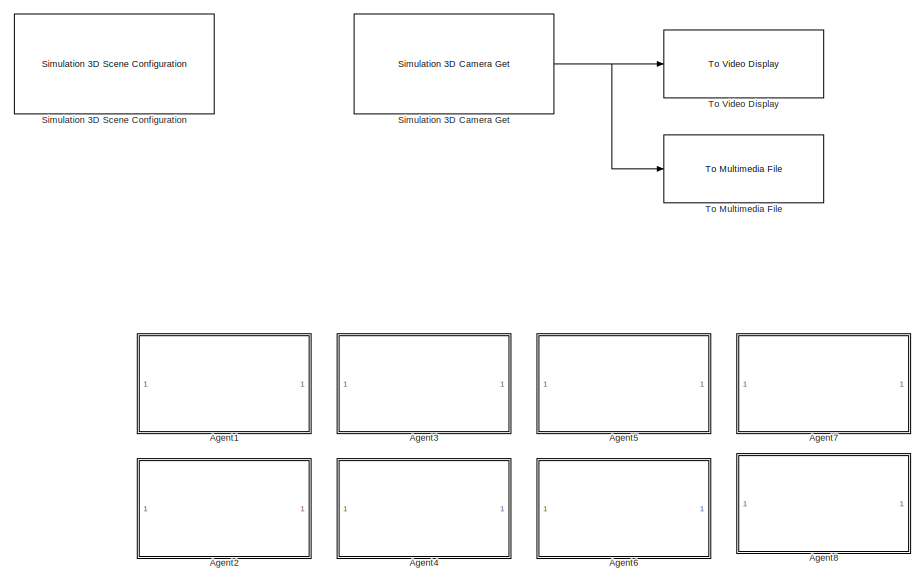
[diagram: root canvas - part 1/4, top center region]
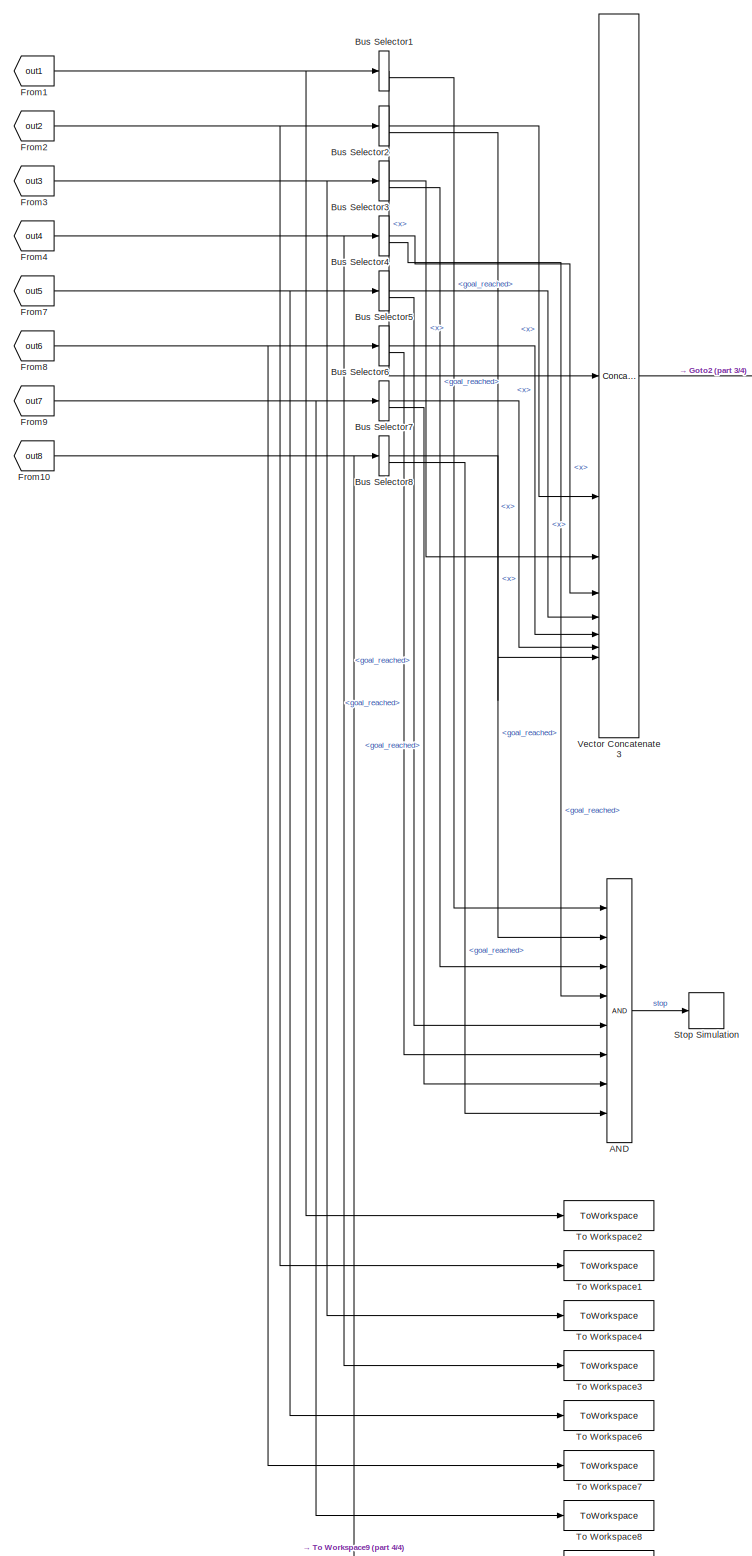
[diagram: root canvas - part 2/4, middle left region]
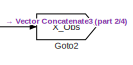
[diagram: root canvas - part 3/4, central region]
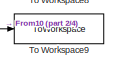
[diagram: root canvas - part 4/4, bottom center region]
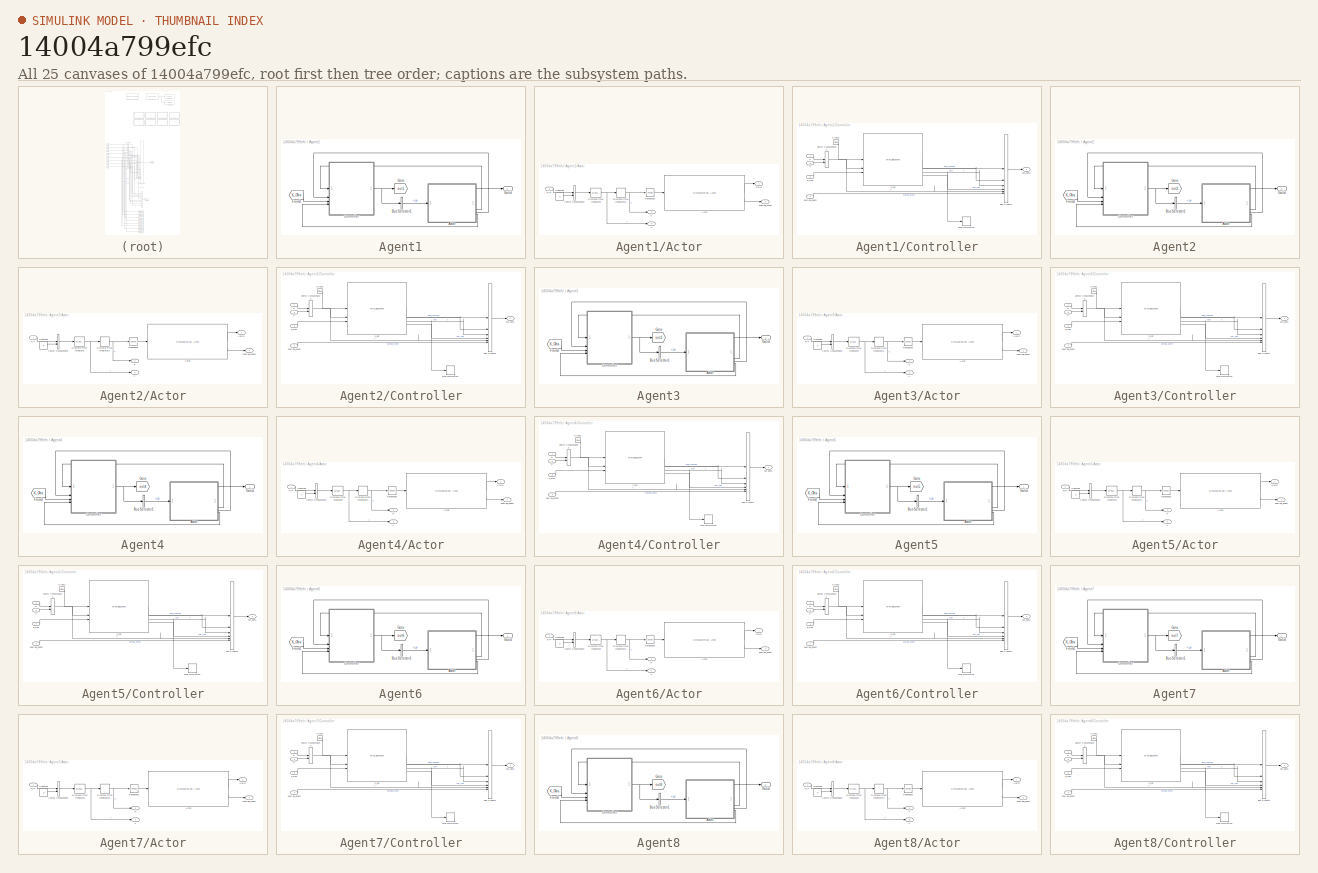
[diagram: thumbnail index - all 25 canvases of the model, root first then tree order]
MODEL slx_14004a799efc
KIND model
CONFIG AbsTol = auto
CONFIG EnableMultiTasking = off
CONFIG FixedStep = config.timestep
CONFIG MaxStep = auto
CONFIG MinStep = auto
CONFIG RelTol = 1e-3
CONFIG SampleTimeConstraint = Unconstrained
CONFIG SolverName = FixedStepAuto
CONFIG StartTime = 0.0
CONFIG StopTime = config.t_max
BLOCK [Logic] AND
  AllPortsSameDT = off
  IconShape = distinctive
  Inputs = 8
  OutDataTypeStr = boolean
BLOCK [SubSystem] Agent1
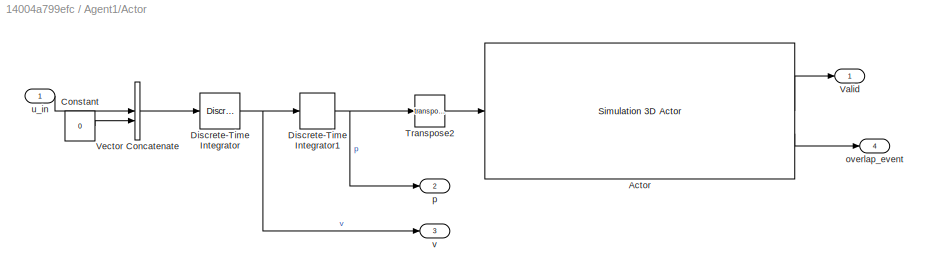
BLOCK [SubSystem] Agent1/Actor
BLOCK [Reference] Agent1/Actor/Actor  REF=sim3dlib/Simulation 3D Actor
  LibrarySourceBlock = sl3dlib/Simulation 3D/Actors/Simulation 3D Actor
  Priority = 1
  SourceBlock = sim3dlib/Simulation 3D Actor
  SourceType = Simulation 3D Actor
BLOCK [Constant] Agent1/Actor/Constant
  Value = 0
BLOCK [DiscreteIntegrator] Agent1/Actor/Discrete-Time Integrator
  ICPrevOutput = DiscIntNeverNeededParam
  ICPrevScaledInput = DiscIntNeverNeededParam
  InitialCondition = agentsInfo{id}.v
  InitialConditionSetting = Auto
  LimitOutput = on
  LowerSaturationLimit = -config.v_max/sqrt(2)
  SampleTime = -1
  UpperSaturationLimit = config.v_max/sqrt(2)
BLOCK [DiscreteIntegrator] Agent1/Actor/Discrete-Time Integrator1
  ICPrevOutput = DiscIntNeverNeededParam
  ICPrevScaledInput = DiscIntNeverNeededParam
  InitialCondition = agentsInfo{id}.p
  InitialConditionSetting = Auto
  SampleTime = -1
BLOCK [Math] Agent1/Actor/Transpose2
  Operator = transpose
BLOCK [Outport] Agent1/Actor/Valid
BLOCK [Concatenate] Agent1/Actor/Vector Concatenate
BLOCK [Outport] Agent1/Actor/overlap_event
  Port = 4
BLOCK [Outport] Agent1/Actor/p
  Port = 2
BLOCK [Inport] Agent1/Actor/u_in
BLOCK [Outport] Agent1/Actor/v
  Port = 3
BLOCK [BusSelector] Agent1/Bus Selector1
  OutputSignals = u
BLOCK [SubSystem] Agent1/Controller
BLOCK [BusCreator] Agent1/Controller/Bus Creator
  DisplayOption = bar
  InheritFromInputs = on
  Inputs = 6
BLOCK [Clock] Agent1/Controller/Clock1
BLOCK [Stop] Agent1/Controller/Stop Simulation
BLOCK [Concatenate] Agent1/Controller/Vector Concatenate2
BLOCK [Inport] Agent1/Controller/X_Obs
  Port = 3
BLOCK [MATLABSystem] Agent1/Controller/h_cbf
  MaskDisplay = disp('h_cbf_system');\nport_label('input',1,'t');\nport_label('input',2,'x');\nport_label('input',3,'X_obs');\nport_label('output',1,'u');\nport_label('output',2,'goal_reached');\nport_label('output',3,'cost');\nport_label('output',4,'exit_flag');  <repeated x8 — deduplicated; at blocks: h_cbf>
  MaskType = h_cbf_system
  SimulateUsing = Interpreted execution
  System = h_cbf_system
  agents_info = agentsInfo
  config = config
  id = id
BLOCK [Outport] Agent1/Controller/out_data
BLOCK [Inport] Agent1/Controller/overlap_event
  Port = 4
BLOCK [Inport] Agent1/Controller/p
BLOCK [Inport] Agent1/Controller/v
  Port = 2
BLOCK [From] Agent1/From3
  GotoTag = X_Obs
  TagVisibility = global
BLOCK [Goto] Agent1/Goto
  GotoTag = out1
  TagVisibility = global
BLOCK [Outport] Agent1/Valid
BLOCK [SubSystem] Agent2
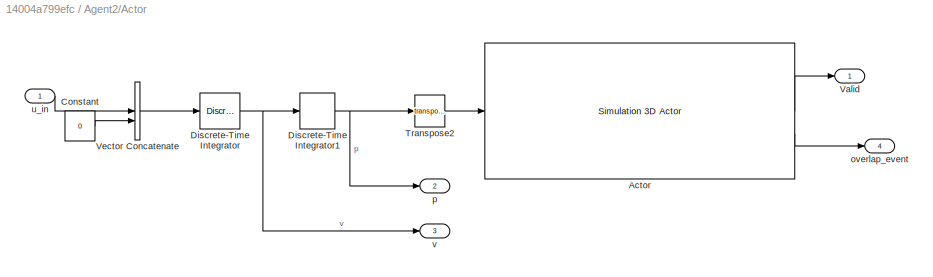
BLOCK [SubSystem] Agent2/Actor
BLOCK [Reference] Agent2/Actor/Actor  REF=sim3dlib/Simulation 3D Actor
  LibrarySourceBlock = sl3dlib/Simulation 3D/Actors/Simulation 3D Actor
  Priority = 1
  SourceBlock = sim3dlib/Simulation 3D Actor
  SourceType = Simulation 3D Actor
BLOCK [Constant] Agent2/Actor/Constant
  Value = 0
BLOCK [DiscreteIntegrator] Agent2/Actor/Discrete-Time Integrator
  ICPrevOutput = DiscIntNeverNeededParam
  ICPrevScaledInput = DiscIntNeverNeededParam
  InitialCondition = agentsInfo{id}.v
  InitialConditionSetting = Auto
  LimitOutput = on
  LowerSaturationLimit = -config.v_max/sqrt(2)
  SampleTime = -1
  UpperSaturationLimit = config.v_max/sqrt(2)
BLOCK [DiscreteIntegrator] Agent2/Actor/Discrete-Time Integrator1
  ICPrevOutput = DiscIntNeverNeededParam
  ICPrevScaledInput = DiscIntNeverNeededParam
  InitialCondition = agentsInfo{id}.p
  InitialConditionSetting = Auto
  SampleTime = -1
BLOCK [Math] Agent2/Actor/Transpose2
  Operator = transpose
BLOCK [Outport] Agent2/Actor/Valid
BLOCK [Concatenate] Agent2/Actor/Vector Concatenate
BLOCK [Outport] Agent2/Actor/overlap_event
  Port = 4
BLOCK [Outport] Agent2/Actor/p
  Port = 2
BLOCK [Inport] Agent2/Actor/u_in
BLOCK [Outport] Agent2/Actor/v
  Port = 3
BLOCK [BusSelector] Agent2/Bus Selector1
  OutputSignals = u
BLOCK [SubSystem] Agent2/Controller
BLOCK [BusCreator] Agent2/Controller/Bus Creator
  DisplayOption = bar
  InheritFromInputs = on
  Inputs = 6
BLOCK [Clock] Agent2/Controller/Clock1
BLOCK [Stop] Agent2/Controller/Stop Simulation
BLOCK [Concatenate] Agent2/Controller/Vector Concatenate2
BLOCK [Inport] Agent2/Controller/X_Obs
  Port = 3
BLOCK [MATLABSystem] Agent2/Controller/h_cbf
  MaskType = h_cbf_system
  SimulateUsing = Interpreted execution
  System = h_cbf_system
  agents_info = agentsInfo
  config = config
  id = id
BLOCK [Outport] Agent2/Controller/out_data
BLOCK [Inport] Agent2/Controller/overlap_event
  Port = 4
BLOCK [Inport] Agent2/Controller/p
BLOCK [Inport] Agent2/Controller/v
  Port = 2
BLOCK [From] Agent2/From3
  GotoTag = X_Obs
  TagVisibility = global
BLOCK [Goto] Agent2/Goto
  GotoTag = out2
  TagVisibility = global
BLOCK [Outport] Agent2/Valid
BLOCK [SubSystem] Agent3
BLOCK [SubSystem] Agent3/Actor
BLOCK [Reference] Agent3/Actor/Actor  REF=sim3dlib/Simulation 3D Actor
  LibrarySourceBlock = sl3dlib/Simulation 3D/Actors/Simulation 3D Actor
  Priority = 1
  SourceBlock = sim3dlib/Simulation 3D Actor
  SourceType = Simulation 3D Actor
BLOCK [Constant] Agent3/Actor/Constant
  Value = 0
BLOCK [DiscreteIntegrator] Agent3/Actor/Discrete-Time Integrator
  ICPrevOutput = DiscIntNeverNeededParam
  ICPrevScaledInput = DiscIntNeverNeededParam
  InitialCondition = agentsInfo{id}.v
  InitialConditionSetting = Auto
  LimitOutput = on
  LowerSaturationLimit = -config.v_max/sqrt(2)
  SampleTime = -1
  UpperSaturationLimit = config.v_max/sqrt(2)
BLOCK [DiscreteIntegrator] Agent3/Actor/Discrete-Time Integrator1
  ICPrevOutput = DiscIntNeverNeededParam
  ICPrevScaledInput = DiscIntNeverNeededParam
  InitialCondition = agentsInfo{id}.p
  InitialConditionSetting = Auto
  SampleTime = -1
BLOCK [Math] Agent3/Actor/Transpose2
  Operator = transpose
BLOCK [Outport] Agent3/Actor/Valid
BLOCK [Concatenate] Agent3/Actor/Vector Concatenate
BLOCK [Outport] Agent3/Actor/overlap_event
  Port = 4
BLOCK [Outport] Agent3/Actor/p
  Port = 2
BLOCK [Inport] Agent3/Actor/u_in
BLOCK [Outport] Agent3/Actor/v
  Port = 3
BLOCK [BusSelector] Agent3/Bus Selector1
  OutputSignals = u
BLOCK [SubSystem] Agent3/Controller
BLOCK [BusCreator] Agent3/Controller/Bus Creator
  DisplayOption = bar
  InheritFromInputs = on
  Inputs = 6
BLOCK [Clock] Agent3/Controller/Clock1
BLOCK [Stop] Agent3/Controller/Stop Simulation
BLOCK [Concatenate] Agent3/Controller/Vector Concatenate2
BLOCK [Inport] Agent3/Controller/X_Obs
  Port = 3
BLOCK [MATLABSystem] Agent3/Controller/h_cbf
  MaskType = h_cbf_system
  SimulateUsing = Interpreted execution
  System = h_cbf_system
  agents_info = agentsInfo
  config = config
  id = id
BLOCK [Outport] Agent3/Controller/out_data
BLOCK [Inport] Agent3/Controller/overlap_event
  Port = 4
BLOCK [Inport] Agent3/Controller/p
BLOCK [Inport] Agent3/Controller/v
  Port = 2
BLOCK [From] Agent3/From3
  GotoTag = X_Obs
  TagVisibility = global
BLOCK [Goto] Agent3/Goto
  GotoTag = out3
  TagVisibility = global
BLOCK [Outport] Agent3/Valid
BLOCK [SubSystem] Agent4
BLOCK [SubSystem] Agent4/Actor
BLOCK [Reference] Agent4/Actor/Actor  REF=sim3dlib/Simulation 3D Actor
  LibrarySourceBlock = sl3dlib/Simulation 3D/Actors/Simulation 3D Actor
  Priority = 1
  SourceBlock = sim3dlib/Simulation 3D Actor
  SourceType = Simulation 3D Actor
BLOCK [Constant] Agent4/Actor/Constant
  Value = 0
BLOCK [DiscreteIntegrator] Agent4/Actor/Discrete-Time Integrator
  ICPrevOutput = DiscIntNeverNeededParam
  ICPrevScaledInput = DiscIntNeverNeededParam
  InitialCondition = agentsInfo{id}.v
  InitialConditionSetting = Auto
  LimitOutput = on
  LowerSaturationLimit = -config.v_max/sqrt(2)
  SampleTime = -1
  UpperSaturationLimit = config.v_max/sqrt(2)
BLOCK [DiscreteIntegrator] Agent4/Actor/Discrete-Time Integrator1
  ICPrevOutput = DiscIntNeverNeededParam
  ICPrevScaledInput = DiscIntNeverNeededParam
  InitialCondition = agentsInfo{id}.p
  InitialConditionSetting = Auto
  SampleTime = -1
BLOCK [Math] Agent4/Actor/Transpose2
  Operator = transpose
BLOCK [Outport] Agent4/Actor/Valid
BLOCK [Concatenate] Agent4/Actor/Vector Concatenate
BLOCK [Outport] Agent4/Actor/overlap_event
  Port = 4
BLOCK [Outport] Agent4/Actor/p
  Port = 2
BLOCK [Inport] Agent4/Actor/u_in
BLOCK [Outport] Agent4/Actor/v
  Port = 3
BLOCK [BusSelector] Agent4/Bus Selector1
  OutputSignals = u
BLOCK [SubSystem] Agent4/Controller
BLOCK [BusCreator] Agent4/Controller/Bus Creator
  DisplayOption = bar
  InheritFromInputs = on
  Inputs = 6
BLOCK [Clock] Agent4/Controller/Clock1
BLOCK [Stop] Agent4/Controller/Stop Simulation
BLOCK [Concatenate] Agent4/Controller/Vector Concatenate2
BLOCK [Inport] Agent4/Controller/X_Obs
  Port = 3
BLOCK [MATLABSystem] Agent4/Controller/h_cbf
  MaskType = h_cbf_system
  SimulateUsing = Interpreted execution
  System = h_cbf_system
  agents_info = agentsInfo
  config = config
  id = id
BLOCK [Outport] Agent4/Controller/out_data
BLOCK [Inport] Agent4/Controller/overlap_event
  Port = 4
BLOCK [Inport] Agent4/Controller/p
BLOCK [Inport] Agent4/Controller/v
  Port = 2
BLOCK [From] Agent4/From3
  GotoTag = X_Obs
  TagVisibility = global
BLOCK [Goto] Agent4/Goto
  GotoTag = out4
  TagVisibility = global
BLOCK [Outport] Agent4/Valid
BLOCK [SubSystem] Agent5
BLOCK [SubSystem] Agent5/Actor
BLOCK [Reference] Agent5/Actor/Actor  REF=sim3dlib/Simulation 3D Actor
  LibrarySourceBlock = sl3dlib/Simulation 3D/Actors/Simulation 3D Actor
  Priority = 1
  SourceBlock = sim3dlib/Simulation 3D Actor
  SourceType = Simulation 3D Actor
BLOCK [Constant] Agent5/Actor/Constant
  Value = 0
BLOCK [DiscreteIntegrator] Agent5/Actor/Discrete-Time Integrator
  ICPrevOutput = DiscIntNeverNeededParam
  ICPrevScaledInput = DiscIntNeverNeededParam
  InitialCondition = agentsInfo{id}.v
  InitialConditionSetting = Auto
  LimitOutput = on
  LowerSaturationLimit = -config.v_max/sqrt(2)
  SampleTime = -1
  UpperSaturationLimit = config.v_max/sqrt(2)
BLOCK [DiscreteIntegrator] Agent5/Actor/Discrete-Time Integrator1
  ICPrevOutput = DiscIntNeverNeededParam
  ICPrevScaledInput = DiscIntNeverNeededParam
  InitialCondition = agentsInfo{id}.p
  InitialConditionSetting = Auto
  SampleTime = -1
BLOCK [Math] Agent5/Actor/Transpose2
  Operator = transpose
BLOCK [Outport] Agent5/Actor/Valid
BLOCK [Concatenate] Agent5/Actor/Vector Concatenate
BLOCK [Outport] Agent5/Actor/overlap_event
  Port = 4
BLOCK [Outport] Agent5/Actor/p
  Port = 2
BLOCK [Inport] Agent5/Actor/u_in
BLOCK [Outport] Agent5/Actor/v
  Port = 3
BLOCK [BusSelector] Agent5/Bus Selector1
  OutputSignals = u
BLOCK [SubSystem] Agent5/Controller
BLOCK [BusCreator] Agent5/Controller/Bus Creator
  DisplayOption = bar
  InheritFromInputs = on
  Inputs = 6
BLOCK [Clock] Agent5/Controller/Clock1
BLOCK [Stop] Agent5/Controller/Stop Simulation
BLOCK [Concatenate] Agent5/Controller/Vector Concatenate2
BLOCK [Inport] Agent5/Controller/X_Obs
  Port = 3
BLOCK [MATLABSystem] Agent5/Controller/h_cbf
  MaskType = h_cbf_system
  SimulateUsing = Interpreted execution
  System = h_cbf_system
  agents_info = agentsInfo
  config = config
  id = id
BLOCK [Outport] Agent5/Controller/out_data
BLOCK [Inport] Agent5/Controller/overlap_event
  Port = 4
BLOCK [Inport] Agent5/Controller/p
BLOCK [Inport] Agent5/Controller/v
  Port = 2
BLOCK [From] Agent5/From3
  GotoTag = X_Obs
  TagVisibility = global
BLOCK [Goto] Agent5/Goto
  GotoTag = out5
  TagVisibility = global
BLOCK [Outport] Agent5/Valid
BLOCK [SubSystem] Agent6
BLOCK [SubSystem] Agent6/Actor
BLOCK [Reference] Agent6/Actor/Actor  REF=sim3dlib/Simulation 3D Actor
  LibrarySourceBlock = sl3dlib/Simulation 3D/Actors/Simulation 3D Actor
  Priority = 1
  SourceBlock = sim3dlib/Simulation 3D Actor
  SourceType = Simulation 3D Actor
BLOCK [Constant] Agent6/Actor/Constant
  Value = 0
BLOCK [DiscreteIntegrator] Agent6/Actor/Discrete-Time Integrator
  ICPrevOutput = DiscIntNeverNeededParam
  ICPrevScaledInput = DiscIntNeverNeededParam
  InitialCondition = agentsInfo{id}.v
  InitialConditionSetting = Auto
  LimitOutput = on
  LowerSaturationLimit = -config.v_max/sqrt(2)
  SampleTime = -1
  UpperSaturationLimit = config.v_max/sqrt(2)
BLOCK [DiscreteIntegrator] Agent6/Actor/Discrete-Time Integrator1
  ICPrevOutput = DiscIntNeverNeededParam
  ICPrevScaledInput = DiscIntNeverNeededParam
  InitialCondition = agentsInfo{id}.p
  InitialConditionSetting = Auto
  SampleTime = -1
BLOCK [Math] Agent6/Actor/Transpose2
  Operator = transpose
BLOCK [Outport] Agent6/Actor/Valid
BLOCK [Concatenate] Agent6/Actor/Vector Concatenate
BLOCK [Outport] Agent6/Actor/overlap_event
  Port = 4
BLOCK [Outport] Agent6/Actor/p
  Port = 2
BLOCK [Inport] Agent6/Actor/u_in
BLOCK [Outport] Agent6/Actor/v
  Port = 3
BLOCK [BusSelector] Agent6/Bus Selector1
  OutputSignals = u
BLOCK [SubSystem] Agent6/Controller
BLOCK [BusCreator] Agent6/Controller/Bus Creator
  DisplayOption = bar
  InheritFromInputs = on
  Inputs = 6
BLOCK [Clock] Agent6/Controller/Clock1
BLOCK [Stop] Agent6/Controller/Stop Simulation
BLOCK [Concatenate] Agent6/Controller/Vector Concatenate2
BLOCK [Inport] Agent6/Controller/X_Obs
  Port = 3
BLOCK [MATLABSystem] Agent6/Controller/h_cbf
  MaskType = h_cbf_system
  SimulateUsing = Interpreted execution
  System = h_cbf_system
  agents_info = agentsInfo
  config = config
  id = id
BLOCK [Outport] Agent6/Controller/out_data
BLOCK [Inport] Agent6/Controller/overlap_event
  Port = 4
BLOCK [Inport] Agent6/Controller/p
BLOCK [Inport] Agent6/Controller/v
  Port = 2
BLOCK [From] Agent6/From3
  GotoTag = X_Obs
  TagVisibility = global
BLOCK [Goto] Agent6/Goto
  GotoTag = out6
  TagVisibility = global
BLOCK [Outport] Agent6/Valid
BLOCK [SubSystem] Agent7
BLOCK [SubSystem] Agent7/Actor
BLOCK [Reference] Agent7/Actor/Actor  REF=sim3dlib/Simulation 3D Actor
  LibrarySourceBlock = sl3dlib/Simulation 3D/Actors/Simulation 3D Actor
  Priority = 1
  SourceBlock = sim3dlib/Simulation 3D Actor
  SourceType = Simulation 3D Actor
BLOCK [Constant] Agent7/Actor/Constant
  Value = 0
BLOCK [DiscreteIntegrator] Agent7/Actor/Discrete-Time Integrator
  ICPrevOutput = DiscIntNeverNeededParam
  ICPrevScaledInput = DiscIntNeverNeededParam
  InitialCondition = agentsInfo{id}.v
  InitialConditionSetting = Auto
  LimitOutput = on
  LowerSaturationLimit = -config.v_max/sqrt(2)
  SampleTime = -1
  UpperSaturationLimit = config.v_max/sqrt(2)
BLOCK [DiscreteIntegrator] Agent7/Actor/Discrete-Time Integrator1
  ICPrevOutput = DiscIntNeverNeededParam
  ICPrevScaledInput = DiscIntNeverNeededParam
  InitialCondition = agentsInfo{id}.p
  InitialConditionSetting = Auto
  SampleTime = -1
BLOCK [Math] Agent7/Actor/Transpose2
  Operator = transpose
BLOCK [Outport] Agent7/Actor/Valid
BLOCK [Concatenate] Agent7/Actor/Vector Concatenate
BLOCK [Outport] Agent7/Actor/overlap_event
  Port = 4
BLOCK [Outport] Agent7/Actor/p
  Port = 2
BLOCK [Inport] Agent7/Actor/u_in
BLOCK [Outport] Agent7/Actor/v
  Port = 3
BLOCK [BusSelector] Agent7/Bus Selector1
  OutputSignals = u
BLOCK [SubSystem] Agent7/Controller
BLOCK [BusCreator] Agent7/Controller/Bus Creator
  DisplayOption = bar
  InheritFromInputs = on
  Inputs = 6
BLOCK [Clock] Agent7/Controller/Clock1
BLOCK [Stop] Agent7/Controller/Stop Simulation
BLOCK [Concatenate] Agent7/Controller/Vector Concatenate2
BLOCK [Inport] Agent7/Controller/X_Obs
  Port = 3
BLOCK [MATLABSystem] Agent7/Controller/h_cbf
  MaskType = h_cbf_system
  SimulateUsing = Interpreted execution
  System = h_cbf_system
  agents_info = agentsInfo
  config = config
  id = id
BLOCK [Outport] Agent7/Controller/out_data
BLOCK [Inport] Agent7/Controller/overlap_event
  Port = 4
BLOCK [Inport] Agent7/Controller/p
BLOCK [Inport] Agent7/Controller/v
  Port = 2
BLOCK [From] Agent7/From3
  GotoTag = X_Obs
  TagVisibility = global
BLOCK [Goto] Agent7/Goto
  GotoTag = out7
  TagVisibility = global
BLOCK [Outport] Agent7/Valid
BLOCK [SubSystem] Agent8
BLOCK [SubSystem] Agent8/Actor
BLOCK [Reference] Agent8/Actor/Actor  REF=sim3dlib/Simulation 3D Actor
  LibrarySourceBlock = sl3dlib/Simulation 3D/Actors/Simulation 3D Actor
  Priority = 1
  SourceBlock = sim3dlib/Simulation 3D Actor
  SourceType = Simulation 3D Actor
BLOCK [Constant] Agent8/Actor/Constant
  Value = 0
BLOCK [DiscreteIntegrator] Agent8/Actor/Discrete-Time Integrator
  ICPrevOutput = DiscIntNeverNeededParam
  ICPrevScaledInput = DiscIntNeverNeededParam
  InitialCondition = agentsInfo{id}.v
  InitialConditionSetting = Auto
  LimitOutput = on
  LowerSaturationLimit = -config.v_max/sqrt(2)
  SampleTime = -1
  UpperSaturationLimit = config.v_max/sqrt(2)
BLOCK [DiscreteIntegrator] Agent8/Actor/Discrete-Time Integrator1
  ICPrevOutput = DiscIntNeverNeededParam
  ICPrevScaledInput = DiscIntNeverNeededParam
  InitialCondition = agentsInfo{id}.p
  InitialConditionSetting = Auto
  SampleTime = -1
BLOCK [Math] Agent8/Actor/Transpose2
  Operator = transpose
BLOCK [Outport] Agent8/Actor/Valid
BLOCK [Concatenate] Agent8/Actor/Vector Concatenate
BLOCK [Outport] Agent8/Actor/overlap_event
  Port = 4
BLOCK [Outport] Agent8/Actor/p
  Port = 2
BLOCK [Inport] Agent8/Actor/u_in
BLOCK [Outport] Agent8/Actor/v
  Port = 3
BLOCK [BusSelector] Agent8/Bus Selector1
  OutputSignals = u
BLOCK [SubSystem] Agent8/Controller
BLOCK [BusCreator] Agent8/Controller/Bus Creator
  DisplayOption = bar
  InheritFromInputs = on
  Inputs = 6
BLOCK [Clock] Agent8/Controller/Clock1
BLOCK [Stop] Agent8/Controller/Stop Simulation
BLOCK [Concatenate] Agent8/Controller/Vector Concatenate2
BLOCK [Inport] Agent8/Controller/X_Obs
  Port = 3
BLOCK [MATLABSystem] Agent8/Controller/h_cbf
  MaskType = h_cbf_system
  SimulateUsing = Interpreted execution
  System = h_cbf_system
  agents_info = agentsInfo
  config = config
  id = id
BLOCK [Outport] Agent8/Controller/out_data
BLOCK [Inport] Agent8/Controller/overlap_event
  Port = 4
BLOCK [Inport] Agent8/Controller/p
BLOCK [Inport] Agent8/Controller/v
  Port = 2
BLOCK [From] Agent8/From3
  GotoTag = X_Obs
  TagVisibility = global
BLOCK [Goto] Agent8/Goto
  GotoTag = out8
  TagVisibility = global
BLOCK [Outport] Agent8/Valid
BLOCK [BusSelector] Bus Selector1
  OutputSignals = x,goal_reached
BLOCK [BusSelector] Bus Selector2
  OutputSignals = x,goal_reached
BLOCK [BusSelector] Bus Selector3
  OutputSignals = x,goal_reached
BLOCK [BusSelector] Bus Selector4
  OutputSignals = x,goal_reached
BLOCK [BusSelector] Bus Selector5
  OutputSignals = x,goal_reached
BLOCK [BusSelector] Bus Selector6
  OutputSignals = x,goal_reached
BLOCK [BusSelector] Bus Selector7
  OutputSignals = x,goal_reached
BLOCK [BusSelector] Bus Selector8
  OutputSignals = x,goal_reached
BLOCK [From] From1
  GotoTag = out1
  TagVisibility = global
BLOCK [From] From10
  GotoTag = out8
  TagVisibility = global
BLOCK [From] From2
  GotoTag = out2
  TagVisibility = global
BLOCK [From] From3
  GotoTag = out3
  TagVisibility = global
BLOCK [From] From4
  GotoTag = out4
  TagVisibility = global
BLOCK [From] From7
  GotoTag = out5
  TagVisibility = global
BLOCK [From] From8
  GotoTag = out6
  TagVisibility = global
BLOCK [From] From9
  GotoTag = out7
  TagVisibility = global
BLOCK [Goto] Goto2
  GotoTag = X_Obs
  TagVisibility = global
BLOCK [Reference] Simulation 3D Camera Get  REF=sim3dlib/Simulation 3D Camera Get
  LibrarySourceBlock = sl3dlib/Simulation 3D/Utilities/Simulation 3D Camera Get
  Priority = 1
  SourceBlock = sim3dlib/Simulation 3D Camera Get
  SourceType = Simulation 3D Camera Get
BLOCK [Reference] Simulation 3D Scene Configuration  REF=sim3dlib/Simulation 3D Scene Configuration
  LibrarySourceBlock = sl3dlib/Simulation 3D/Environment/Simulation 3D Scene Configuration
  Priority = 0
  SourceBlock = sim3dlib/Simulation 3D Scene Configuration
  SourceType = Simulation 3D Scene Configuration
BLOCK [Stop] Stop Simulation
BLOCK [Reference] To Multimedia File  REF=dspvision/To Multimedia File
  LibrarySourceBlock = visionsinks/To Multimedia File
  SourceBlock = dspvision/To Multimedia File
  SourceType = To Multimedia File
BLOCK [Reference] To Video Display  REF=visionsinks/To Video Display
  SourceBlock = visionsinks/To Video Display
  SourceType = To Video Display
BLOCK [ToWorkspace] To Workspace1
  FixptAsFi = on
  MaxDataPoints = inf
  SampleTime = -1
  SaveFormat = Timeseries
  VariableName = agent2
BLOCK [ToWorkspace] To Workspace2
  FixptAsFi = on
  MaxDataPoints = inf
  SampleTime = -1
  SaveFormat = Timeseries
  VariableName = agent1
BLOCK [ToWorkspace] To Workspace3
  FixptAsFi = on
  MaxDataPoints = inf
  SampleTime = -1
  SaveFormat = Timeseries
  VariableName = agent4
BLOCK [ToWorkspace] To Workspace4
  FixptAsFi = on
  MaxDataPoints = inf
  SampleTime = -1
  SaveFormat = Timeseries
  VariableName = agent3
BLOCK [ToWorkspace] To Workspace6
  FixptAsFi = on
  MaxDataPoints = inf
  SampleTime = -1
  SaveFormat = Timeseries
  VariableName = agent5
BLOCK [ToWorkspace] To Workspace7
  FixptAsFi = on
  MaxDataPoints = inf
  SampleTime = -1
  SaveFormat = Timeseries
  VariableName = agent6
BLOCK [ToWorkspace] To Workspace8
  FixptAsFi = on
  MaxDataPoints = inf
  SampleTime = -1
  SaveFormat = Timeseries
  VariableName = agent7
BLOCK [ToWorkspace] To Workspace9
  FixptAsFi = on
  MaxDataPoints = inf
  SampleTime = -1
  SaveFormat = Timeseries
  VariableName = agent8
BLOCK [Concatenate] Vector Concatenate3
  ConcatenateDimension = 2
  Mode = Multidimensional array
  NumInputs = 8
LINE AND:1 -> Stop Simulation:1
LINE Agent1/Actor/Actor:1 -> Agent1/Actor/Valid:1
LINE Agent1/Actor/Actor:2 -> Agent1/Actor/overlap_event:1
LINE Agent1/Actor/Constant:1 -> Agent1/Actor/Vector Concatenate:2
NET Agent1/Actor/Discrete-Time Integrator1:1 -> Agent1/Actor/Transpose2:1, Agent1/Actor/p:1
NET Agent1/Actor/Discrete-Time Integrator:1 -> Agent1/Actor/Discrete-Time Integrator1:1, Agent1/Actor/v:1
LINE Agent1/Actor/Transpose2:1 -> Agent1/Actor/Actor:1
LINE Agent1/Actor/Vector Concatenate:1 -> Agent1/Actor/Discrete-Time Integrator:1
LINE Agent1/Actor/u_in:1 -> Agent1/Actor/Vector Concatenate:1
LINE Agent1/Actor:1 -> Agent1/Valid:1
LINE Agent1/Actor:2 -> Agent1/Controller:1
LINE Agent1/Actor:3 -> Agent1/Controller:2
LINE Agent1/Actor:4 -> Agent1/Controller:4
LINE Agent1/Bus Selector1:1 -> Agent1/Actor:1
LINE Agent1/Controller/Bus Creator:1 -> Agent1/Controller/out_data:1
LINE Agent1/Controller/Clock1:1 -> Agent1/Controller/h_cbf:1
NET Agent1/Controller/Vector Concatenate2:1 -> Agent1/Controller/Bus Creator:5, Agent1/Controller/h_cbf:2
LINE Agent1/Controller/X_Obs:1 -> Agent1/Controller/h_cbf:3
LINE Agent1/Controller/h_cbf:1 -> Agent1/Controller/Bus Creator:1
LINE Agent1/Controller/h_cbf:2 -> Agent1/Controller/Bus Creator:2
LINE Agent1/Controller/h_cbf:3 -> Agent1/Controller/Bus Creator:3
NET Agent1/Controller/h_cbf:4 -> Agent1/Controller/Bus Creator:4, Agent1/Controller/Stop Simulation:1
LINE Agent1/Controller/overlap_event:1 -> Agent1/Controller/Bus Creator:6
LINE Agent1/Controller/p:1 -> Agent1/Controller/Vector Concatenate2:1
LINE Agent1/Controller/v:1 -> Agent1/Controller/Vector Concatenate2:2
NET Agent1/Controller:1 -> Agent1/Bus Selector1:1, Agent1/Goto:1
LINE Agent1/From3:1 -> Agent1/Controller:3
LINE Agent2/Actor/Actor:1 -> Agent2/Actor/Valid:1
LINE Agent2/Actor/Actor:2 -> Agent2/Actor/overlap_event:1
LINE Agent2/Actor/Constant:1 -> Agent2/Actor/Vector Concatenate:2
NET Agent2/Actor/Discrete-Time Integrator1:1 -> Agent2/Actor/Transpose2:1, Agent2/Actor/p:1
NET Agent2/Actor/Discrete-Time Integrator:1 -> Agent2/Actor/Discrete-Time Integrator1:1, Agent2/Actor/v:1
LINE Agent2/Actor/Transpose2:1 -> Agent2/Actor/Actor:1
LINE Agent2/Actor/Vector Concatenate:1 -> Agent2/Actor/Discrete-Time Integrator:1
LINE Agent2/Actor/u_in:1 -> Agent2/Actor/Vector Concatenate:1
LINE Agent2/Actor:1 -> Agent2/Valid:1
LINE Agent2/Actor:2 -> Agent2/Controller:1
LINE Agent2/Actor:3 -> Agent2/Controller:2
LINE Agent2/Actor:4 -> Agent2/Controller:4
LINE Agent2/Bus Selector1:1 -> Agent2/Actor:1
LINE Agent2/Controller/Bus Creator:1 -> Agent2/Controller/out_data:1
LINE Agent2/Controller/Clock1:1 -> Agent2/Controller/h_cbf:1
NET Agent2/Controller/Vector Concatenate2:1 -> Agent2/Controller/Bus Creator:5, Agent2/Controller/h_cbf:2
LINE Agent2/Controller/X_Obs:1 -> Agent2/Controller/h_cbf:3
LINE Agent2/Controller/h_cbf:1 -> Agent2/Controller/Bus Creator:1
LINE Agent2/Controller/h_cbf:2 -> Agent2/Controller/Bus Creator:2
LINE Agent2/Controller/h_cbf:3 -> Agent2/Controller/Bus Creator:3
NET Agent2/Controller/h_cbf:4 -> Agent2/Controller/Bus Creator:4, Agent2/Controller/Stop Simulation:1
LINE Agent2/Controller/overlap_event:1 -> Agent2/Controller/Bus Creator:6
LINE Agent2/Controller/p:1 -> Agent2/Controller/Vector Concatenate2:1
LINE Agent2/Controller/v:1 -> Agent2/Controller/Vector Concatenate2:2
NET Agent2/Controller:1 -> Agent2/Bus Selector1:1, Agent2/Goto:1
LINE Agent2/From3:1 -> Agent2/Controller:3
LINE Agent3/Actor/Actor:1 -> Agent3/Actor/Valid:1
LINE Agent3/Actor/Actor:2 -> Agent3/Actor/overlap_event:1
LINE Agent3/Actor/Constant:1 -> Agent3/Actor/Vector Concatenate:2
NET Agent3/Actor/Discrete-Time Integrator1:1 -> Agent3/Actor/Transpose2:1, Agent3/Actor/p:1
NET Agent3/Actor/Discrete-Time Integrator:1 -> Agent3/Actor/Discrete-Time Integrator1:1, Agent3/Actor/v:1
LINE Agent3/Actor/Transpose2:1 -> Agent3/Actor/Actor:1
LINE Agent3/Actor/Vector Concatenate:1 -> Agent3/Actor/Discrete-Time Integrator:1
LINE Agent3/Actor/u_in:1 -> Agent3/Actor/Vector Concatenate:1
LINE Agent3/Actor:1 -> Agent3/Valid:1
LINE Agent3/Actor:2 -> Agent3/Controller:1
LINE Agent3/Actor:3 -> Agent3/Controller:2
LINE Agent3/Actor:4 -> Agent3/Controller:4
LINE Agent3/Bus Selector1:1 -> Agent3/Actor:1
LINE Agent3/Controller/Bus Creator:1 -> Agent3/Controller/out_data:1
LINE Agent3/Controller/Clock1:1 -> Agent3/Controller/h_cbf:1
NET Agent3/Controller/Vector Concatenate2:1 -> Agent3/Controller/Bus Creator:5, Agent3/Controller/h_cbf:2
LINE Agent3/Controller/X_Obs:1 -> Agent3/Controller/h_cbf:3
LINE Agent3/Controller/h_cbf:1 -> Agent3/Controller/Bus Creator:1
LINE Agent3/Controller/h_cbf:2 -> Agent3/Controller/Bus Creator:2
LINE Agent3/Controller/h_cbf:3 -> Agent3/Controller/Bus Creator:3
NET Agent3/Controller/h_cbf:4 -> Agent3/Controller/Bus Creator:4, Agent3/Controller/Stop Simulation:1
LINE Agent3/Controller/overlap_event:1 -> Agent3/Controller/Bus Creator:6
LINE Agent3/Controller/p:1 -> Agent3/Controller/Vector Concatenate2:1
LINE Agent3/Controller/v:1 -> Agent3/Controller/Vector Concatenate2:2
NET Agent3/Controller:1 -> Agent3/Bus Selector1:1, Agent3/Goto:1
LINE Agent3/From3:1 -> Agent3/Controller:3
LINE Agent4/Actor/Actor:1 -> Agent4/Actor/Valid:1
LINE Agent4/Actor/Actor:2 -> Agent4/Actor/overlap_event:1
LINE Agent4/Actor/Constant:1 -> Agent4/Actor/Vector Concatenate:2
NET Agent4/Actor/Discrete-Time Integrator1:1 -> Agent4/Actor/Transpose2:1, Agent4/Actor/p:1
NET Agent4/Actor/Discrete-Time Integrator:1 -> Agent4/Actor/Discrete-Time Integrator1:1, Agent4/Actor/v:1
LINE Agent4/Actor/Transpose2:1 -> Agent4/Actor/Actor:1
LINE Agent4/Actor/Vector Concatenate:1 -> Agent4/Actor/Discrete-Time Integrator:1
LINE Agent4/Actor/u_in:1 -> Agent4/Actor/Vector Concatenate:1
LINE Agent4/Actor:1 -> Agent4/Valid:1
LINE Agent4/Actor:2 -> Agent4/Controller:1
LINE Agent4/Actor:3 -> Agent4/Controller:2
LINE Agent4/Actor:4 -> Agent4/Controller:4
LINE Agent4/Bus Selector1:1 -> Agent4/Actor:1
LINE Agent4/Controller/Bus Creator:1 -> Agent4/Controller/out_data:1
LINE Agent4/Controller/Clock1:1 -> Agent4/Controller/h_cbf:1
NET Agent4/Controller/Vector Concatenate2:1 -> Agent4/Controller/Bus Creator:5, Agent4/Controller/h_cbf:2
LINE Agent4/Controller/X_Obs:1 -> Agent4/Controller/h_cbf:3
LINE Agent4/Controller/h_cbf:1 -> Agent4/Controller/Bus Creator:1
LINE Agent4/Controller/h_cbf:2 -> Agent4/Controller/Bus Creator:2
LINE Agent4/Controller/h_cbf:3 -> Agent4/Controller/Bus Creator:3
NET Agent4/Controller/h_cbf:4 -> Agent4/Controller/Bus Creator:4, Agent4/Controller/Stop Simulation:1
LINE Agent4/Controller/overlap_event:1 -> Agent4/Controller/Bus Creator:6
LINE Agent4/Controller/p:1 -> Agent4/Controller/Vector Concatenate2:1
LINE Agent4/Controller/v:1 -> Agent4/Controller/Vector Concatenate2:2
NET Agent4/Controller:1 -> Agent4/Bus Selector1:1, Agent4/Goto:1
LINE Agent4/From3:1 -> Agent4/Controller:3
LINE Agent5/Actor/Actor:1 -> Agent5/Actor/Valid:1
LINE Agent5/Actor/Actor:2 -> Agent5/Actor/overlap_event:1
LINE Agent5/Actor/Constant:1 -> Agent5/Actor/Vector Concatenate:2
NET Agent5/Actor/Discrete-Time Integrator1:1 -> Agent5/Actor/Transpose2:1, Agent5/Actor/p:1
NET Agent5/Actor/Discrete-Time Integrator:1 -> Agent5/Actor/Discrete-Time Integrator1:1, Agent5/Actor/v:1
LINE Agent5/Actor/Transpose2:1 -> Agent5/Actor/Actor:1
LINE Agent5/Actor/Vector Concatenate:1 -> Agent5/Actor/Discrete-Time Integrator:1
LINE Agent5/Actor/u_in:1 -> Agent5/Actor/Vector Concatenate:1
LINE Agent5/Actor:1 -> Agent5/Valid:1
LINE Agent5/Actor:2 -> Agent5/Controller:1
LINE Agent5/Actor:3 -> Agent5/Controller:2
LINE Agent5/Actor:4 -> Agent5/Controller:4
LINE Agent5/Bus Selector1:1 -> Agent5/Actor:1
LINE Agent5/Controller/Bus Creator:1 -> Agent5/Controller/out_data:1
LINE Agent5/Controller/Clock1:1 -> Agent5/Controller/h_cbf:1
NET Agent5/Controller/Vector Concatenate2:1 -> Agent5/Controller/Bus Creator:5, Agent5/Controller/h_cbf:2
LINE Agent5/Controller/X_Obs:1 -> Agent5/Controller/h_cbf:3
LINE Agent5/Controller/h_cbf:1 -> Agent5/Controller/Bus Creator:1
LINE Agent5/Controller/h_cbf:2 -> Agent5/Controller/Bus Creator:2
LINE Agent5/Controller/h_cbf:3 -> Agent5/Controller/Bus Creator:3
NET Agent5/Controller/h_cbf:4 -> Agent5/Controller/Bus Creator:4, Agent5/Controller/Stop Simulation:1
LINE Agent5/Controller/overlap_event:1 -> Agent5/Controller/Bus Creator:6
LINE Agent5/Controller/p:1 -> Agent5/Controller/Vector Concatenate2:1
LINE Agent5/Controller/v:1 -> Agent5/Controller/Vector Concatenate2:2
NET Agent5/Controller:1 -> Agent5/Bus Selector1:1, Agent5/Goto:1
LINE Agent5/From3:1 -> Agent5/Controller:3
LINE Agent6/Actor/Actor:1 -> Agent6/Actor/Valid:1
LINE Agent6/Actor/Actor:2 -> Agent6/Actor/overlap_event:1
LINE Agent6/Actor/Constant:1 -> Agent6/Actor/Vector Concatenate:2
NET Agent6/Actor/Discrete-Time Integrator1:1 -> Agent6/Actor/Transpose2:1, Agent6/Actor/p:1
NET Agent6/Actor/Discrete-Time Integrator:1 -> Agent6/Actor/Discrete-Time Integrator1:1, Agent6/Actor/v:1
LINE Agent6/Actor/Transpose2:1 -> Agent6/Actor/Actor:1
LINE Agent6/Actor/Vector Concatenate:1 -> Agent6/Actor/Discrete-Time Integrator:1
LINE Agent6/Actor/u_in:1 -> Agent6/Actor/Vector Concatenate:1
LINE Agent6/Actor:1 -> Agent6/Valid:1
LINE Agent6/Actor:2 -> Agent6/Controller:1
LINE Agent6/Actor:3 -> Agent6/Controller:2
LINE Agent6/Actor:4 -> Agent6/Controller:4
LINE Agent6/Bus Selector1:1 -> Agent6/Actor:1
LINE Agent6/Controller/Bus Creator:1 -> Agent6/Controller/out_data:1
LINE Agent6/Controller/Clock1:1 -> Agent6/Controller/h_cbf:1
NET Agent6/Controller/Vector Concatenate2:1 -> Agent6/Controller/Bus Creator:5, Agent6/Controller/h_cbf:2
LINE Agent6/Controller/X_Obs:1 -> Agent6/Controller/h_cbf:3
LINE Agent6/Controller/h_cbf:1 -> Agent6/Controller/Bus Creator:1
LINE Agent6/Controller/h_cbf:2 -> Agent6/Controller/Bus Creator:2
LINE Agent6/Controller/h_cbf:3 -> Agent6/Controller/Bus Creator:3
NET Agent6/Controller/h_cbf:4 -> Agent6/Controller/Bus Creator:4, Agent6/Controller/Stop Simulation:1
LINE Agent6/Controller/overlap_event:1 -> Agent6/Controller/Bus Creator:6
LINE Agent6/Controller/p:1 -> Agent6/Controller/Vector Concatenate2:1
LINE Agent6/Controller/v:1 -> Agent6/Controller/Vector Concatenate2:2
NET Agent6/Controller:1 -> Agent6/Bus Selector1:1, Agent6/Goto:1
LINE Agent6/From3:1 -> Agent6/Controller:3
LINE Agent7/Actor/Actor:1 -> Agent7/Actor/Valid:1
LINE Agent7/Actor/Actor:2 -> Agent7/Actor/overlap_event:1
LINE Agent7/Actor/Constant:1 -> Agent7/Actor/Vector Concatenate:2
NET Agent7/Actor/Discrete-Time Integrator1:1 -> Agent7/Actor/Transpose2:1, Agent7/Actor/p:1
NET Agent7/Actor/Discrete-Time Integrator:1 -> Agent7/Actor/Discrete-Time Integrator1:1, Agent7/Actor/v:1
LINE Agent7/Actor/Transpose2:1 -> Agent7/Actor/Actor:1
LINE Agent7/Actor/Vector Concatenate:1 -> Agent7/Actor/Discrete-Time Integrator:1
LINE Agent7/Actor/u_in:1 -> Agent7/Actor/Vector Concatenate:1
LINE Agent7/Actor:1 -> Agent7/Valid:1
LINE Agent7/Actor:2 -> Agent7/Controller:1
LINE Agent7/Actor:3 -> Agent7/Controller:2
LINE Agent7/Actor:4 -> Agent7/Controller:4
LINE Agent7/Bus Selector1:1 -> Agent7/Actor:1
LINE Agent7/Controller/Bus Creator:1 -> Agent7/Controller/out_data:1
LINE Agent7/Controller/Clock1:1 -> Agent7/Controller/h_cbf:1
NET Agent7/Controller/Vector Concatenate2:1 -> Agent7/Controller/Bus Creator:5, Agent7/Controller/h_cbf:2
LINE Agent7/Controller/X_Obs:1 -> Agent7/Controller/h_cbf:3
LINE Agent7/Controller/h_cbf:1 -> Agent7/Controller/Bus Creator:1
LINE Agent7/Controller/h_cbf:2 -> Agent7/Controller/Bus Creator:2
LINE Agent7/Controller/h_cbf:3 -> Agent7/Controller/Bus Creator:3
NET Agent7/Controller/h_cbf:4 -> Agent7/Controller/Bus Creator:4, Agent7/Controller/Stop Simulation:1
LINE Agent7/Controller/overlap_event:1 -> Agent7/Controller/Bus Creator:6
LINE Agent7/Controller/p:1 -> Agent7/Controller/Vector Concatenate2:1
LINE Agent7/Controller/v:1 -> Agent7/Controller/Vector Concatenate2:2
NET Agent7/Controller:1 -> Agent7/Bus Selector1:1, Agent7/Goto:1
LINE Agent7/From3:1 -> Agent7/Controller:3
LINE Agent8/Actor/Actor:1 -> Agent8/Actor/Valid:1
LINE Agent8/Actor/Actor:2 -> Agent8/Actor/overlap_event:1
LINE Agent8/Actor/Constant:1 -> Agent8/Actor/Vector Concatenate:2
NET Agent8/Actor/Discrete-Time Integrator1:1 -> Agent8/Actor/Transpose2:1, Agent8/Actor/p:1
NET Agent8/Actor/Discrete-Time Integrator:1 -> Agent8/Actor/Discrete-Time Integrator1:1, Agent8/Actor/v:1
LINE Agent8/Actor/Transpose2:1 -> Agent8/Actor/Actor:1
LINE Agent8/Actor/Vector Concatenate:1 -> Agent8/Actor/Discrete-Time Integrator:1
LINE Agent8/Actor/u_in:1 -> Agent8/Actor/Vector Concatenate:1
LINE Agent8/Actor:1 -> Agent8/Valid:1
LINE Agent8/Actor:2 -> Agent8/Controller:1
LINE Agent8/Actor:3 -> Agent8/Controller:2
LINE Agent8/Actor:4 -> Agent8/Controller:4
LINE Agent8/Bus Selector1:1 -> Agent8/Actor:1
LINE Agent8/Controller/Bus Creator:1 -> Agent8/Controller/out_data:1
LINE Agent8/Controller/Clock1:1 -> Agent8/Controller/h_cbf:1
NET Agent8/Controller/Vector Concatenate2:1 -> Agent8/Controller/Bus Creator:5, Agent8/Controller/h_cbf:2
LINE Agent8/Controller/X_Obs:1 -> Agent8/Controller/h_cbf:3
LINE Agent8/Controller/h_cbf:1 -> Agent8/Controller/Bus Creator:1
LINE Agent8/Controller/h_cbf:2 -> Agent8/Controller/Bus Creator:2
LINE Agent8/Controller/h_cbf:3 -> Agent8/Controller/Bus Creator:3
NET Agent8/Controller/h_cbf:4 -> Agent8/Controller/Bus Creator:4, Agent8/Controller/Stop Simulation:1
LINE Agent8/Controller/overlap_event:1 -> Agent8/Controller/Bus Creator:6
LINE Agent8/Controller/p:1 -> Agent8/Controller/Vector Concatenate2:1
LINE Agent8/Controller/v:1 -> Agent8/Controller/Vector Concatenate2:2
NET Agent8/Controller:1 -> Agent8/Bus Selector1:1, Agent8/Goto:1
LINE Agent8/From3:1 -> Agent8/Controller:3
LINE Bus Selector1:1 -> Vector Concatenate3:1
LINE Bus Selector1:2 -> AND:1
LINE Bus Selector2:1 -> Vector Concatenate3:2
LINE Bus Selector2:2 -> AND:2
LINE Bus Selector3:1 -> Vector Concatenate3:3
LINE Bus Selector3:2 -> AND:3
LINE Bus Selector4:1 -> Vector Concatenate3:4
LINE Bus Selector4:2 -> AND:4
LINE Bus Selector5:1 -> Vector Concatenate3:5
LINE Bus Selector5:2 -> AND:5
LINE Bus Selector6:1 -> Vector Concatenate3:6
LINE Bus Selector6:2 -> AND:6
LINE Bus Selector7:1 -> Vector Concatenate3:7
LINE Bus Selector7:2 -> AND:7
LINE Bus Selector8:1 -> Vector Concatenate3:8
LINE Bus Selector8:2 -> AND:8
NET From10:1 -> Bus Selector8:1, To Workspace9:1
NET From1:1 -> Bus Selector1:1, To Workspace2:1
NET From2:1 -> Bus Selector2:1, To Workspace1:1
NET From3:1 -> Bus Selector3:1, To Workspace4:1
NET From4:1 -> Bus Selector4:1, To Workspace3:1
NET From7:1 -> Bus Selector5:1, To Workspace6:1
NET From8:1 -> Bus Selector6:1, To Workspace7:1
NET From9:1 -> Bus Selector7:1, To Workspace8:1
NET Simulation 3D Camera Get:1 -> To Multimedia File:1, To Video Display:1
LINE Vector Concatenate3:1 -> Goto2:1
note: NET lines group one-source signal fan-out (src -> all destinations, sorted); 1:1 wires keep LINE
